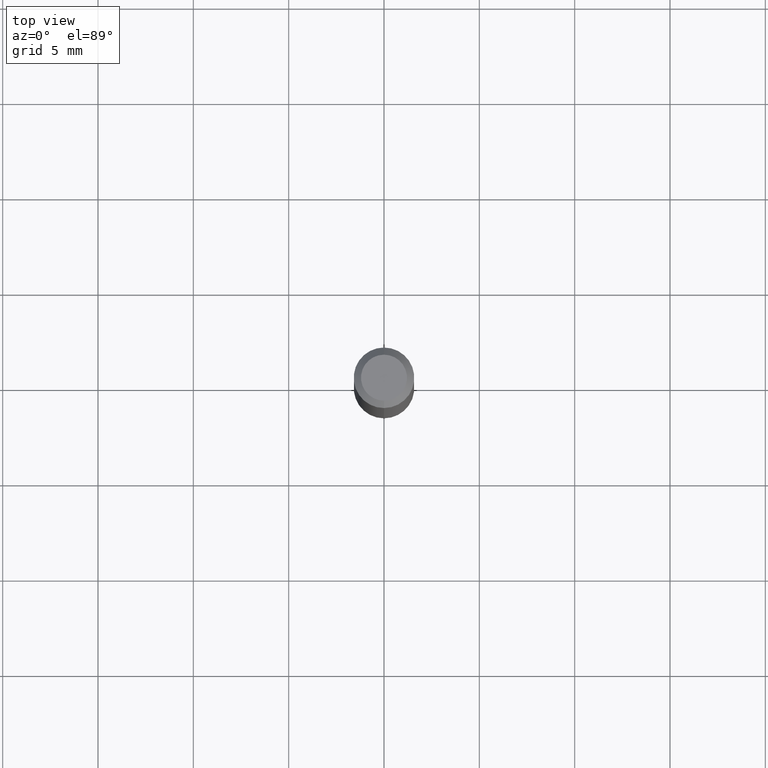
[diagram: clean part render]
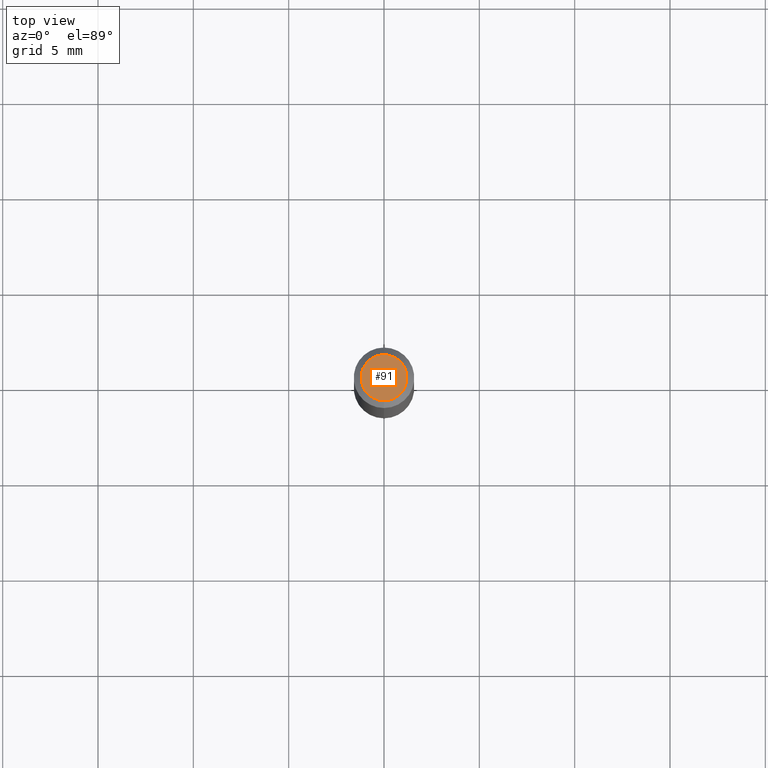
[diagram: same view with one face highlighted and labeled with its STEP entity id]
A machine part, top view. The second image highlights one B-rep face of the part: STEP entity #91.
In plain terms, the highlighted planar face has unit normal (0, -0, -1).
Its self-contained STEP definition (entity closure, byte-faithful):
#5 = DIRECTION ( 'NONE',  ( 6.982962677686265922E-15, 1.000000000000000000, -3.491494217719718560E-15 ) ) ;
#35 = AXIS2_PLACEMENT_3D ( 'NONE', #505, #343, #351 ) ;
#53 = FACE_OUTER_BOUND ( 'NONE', #142, .T. ) ;
#89 = VERTEX_POINT ( 'NONE', #390 ) ;
#91 = ADVANCED_FACE ( 'NONE', ( #53 ), #132, .F. ) ;
#95 = AXIS2_PLACEMENT_3D ( 'NONE', #127, #405, #5 ) ;
#127 = CARTESIAN_POINT ( 'NONE',  ( 3.316907271900976096E-16, 0.04749999999999999362, -1.702758292642835588E-16 ) ) ;
#132 = PLANE ( 'NONE',  #95 ) ;
#138 = ORIENTED_EDGE ( 'NONE', *, *, #352, .T. ) ;
#142 = EDGE_LOOP ( 'NONE', ( #138, #416 ) ) ;
#147 = CIRCLE ( 'NONE', #35, 0.04749999999999999362 ) ;
#157 = CARTESIAN_POINT ( 'NONE',  ( 3.840629472727447874E-16, 0.04749999999999999362, -1.747056831868805136E-16 ) ) ;
#190 = CARTESIAN_POINT ( 'NONE',  ( 2.166605948957784307E-46, -3.093361871218051006E-32, -8.859707845193895781E-18 ) ) ;
#273 = EDGE_CURVE ( 'NONE', #89, #401, #147, .T. ) ;
#287 = AXIS2_PLACEMENT_3D ( 'NONE', #190, #345, #465 ) ;
#343 = DIRECTION ( 'NONE',  ( -2.445459812913692826E-29, 3.491494217719718166E-15, 1.000000000000000000 ) ) ;
#345 = DIRECTION ( 'NONE',  ( -2.445459812913692826E-29, 3.491494217719718166E-15, 1.000000000000000000 ) ) ;
#351 = DIRECTION ( 'NONE',  ( -6.982962677686266711E-15, -1.000000000000000000, 3.491494217719718560E-15 ) ) ;
#352 = EDGE_CURVE ( 'NONE', #401, #89, #463, .T. ) ;
#390 = CARTESIAN_POINT ( 'NONE',  ( -3.773273898774340269E-16, -0.04749999999999999362, 1.569862674964926943E-16 ) ) ;
#401 = VERTEX_POINT ( 'NONE', #157 ) ;
#405 = DIRECTION ( 'NONE',  ( 2.445459812913692266E-29, -3.491494217719718560E-15, -1.000000000000000000 ) ) ;
#416 = ORIENTED_EDGE ( 'NONE', *, *, #273, .T. ) ;
#463 = CIRCLE ( 'NONE', #287, 0.04749999999999999362 ) ;
#465 = DIRECTION ( 'NONE',  ( -6.982962677686266711E-15, -1.000000000000000000, 3.491494217719718560E-15 ) ) ;
#505 = CARTESIAN_POINT ( 'NONE',  ( 2.166605948957784307E-46, -3.093361871218051006E-32, -8.859707845193895781E-18 ) ) ;